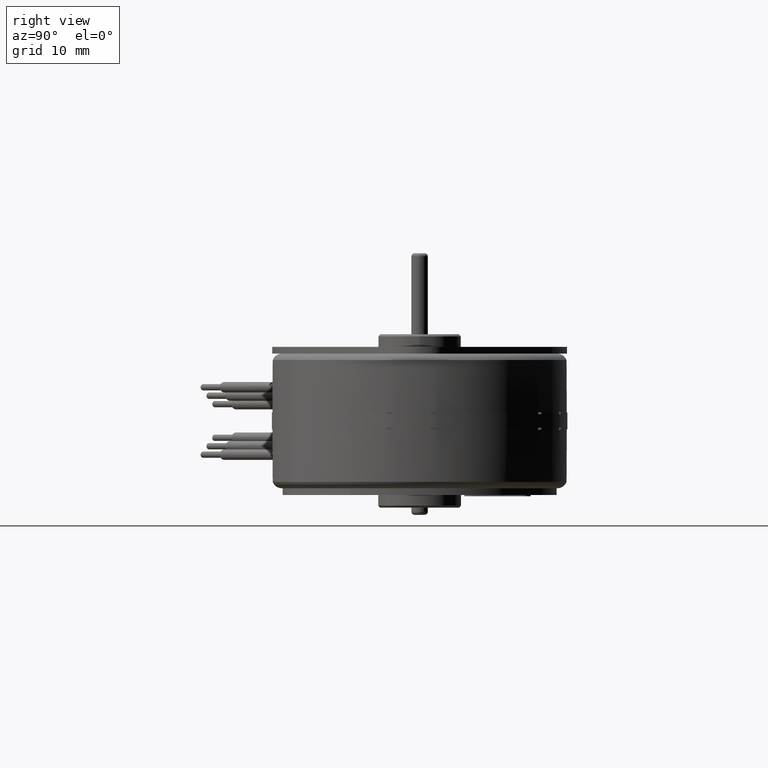
[diagram: clean part render]
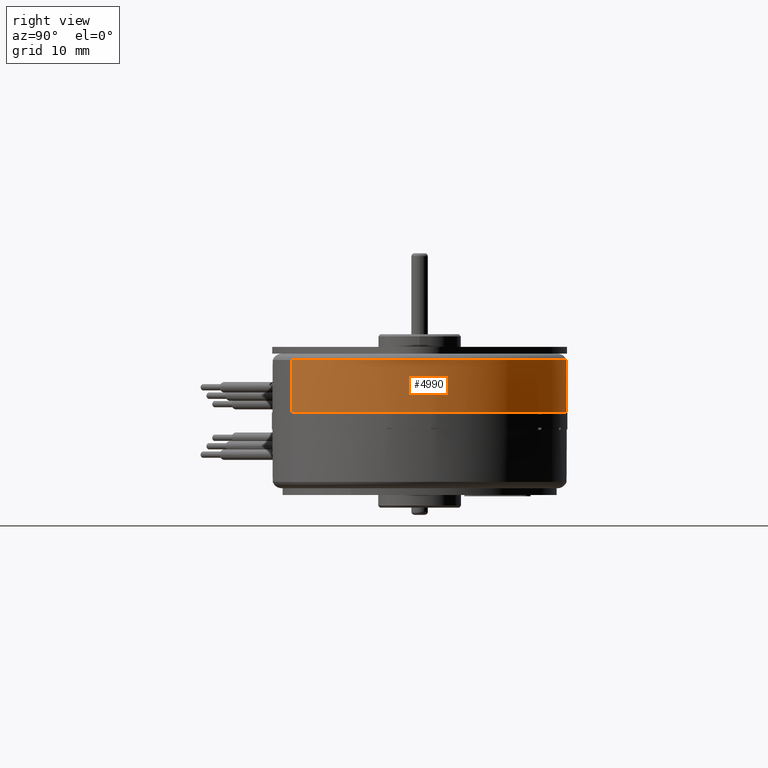
[diagram: same view with one face highlighted and labeled with its STEP entity id]
A machine part, right view. The second image highlights one B-rep face of the part: STEP entity #4990.
In plain terms, the highlighted cylindrical surface (partial cylindrical patch) has radius 17.7673 mm, axis along (0, 0, -1).
Its self-contained STEP definition (entity closure, byte-faithful):
#365=CARTESIAN_POINT('',(0.E0,0.E0,2.895227116419E-1));
#366=DIRECTION('',(0.E0,0.E0,-1.E0));
#367=DIRECTION('',(-5.E-1,8.660254037845E-1,0.E0));
#368=AXIS2_PLACEMENT_3D('',#365,#366,#367);
#454=CARTESIAN_POINT('',(0.E0,0.E0,4.000000000002E-2));
#455=DIRECTION('',(0.E0,0.E0,1.E0));
#456=DIRECTION('',(5.E-1,-8.660254037844E-1,0.E0));
#457=AXIS2_PLACEMENT_3D('',#454,#455,#456);
#477=DIRECTION('',(2.220446049255E-13,8.881784197021E-13,1.E0));
#478=VECTOR('',#477,1.999999999996E-3);
#479=CARTESIAN_POINT('',(6.947060848518E-1,8.175393366621E-2,
4.000000000001E-2));
#480=LINE('',#479,#478);
#481=DIRECTION('',(2.775557561571E-13,-2.563921297501E-12,-1.E0));
#482=VECTOR('',#481,1.999999999994E-3);
#483=CARTESIAN_POINT('',(6.972072767762E-1,5.658854310195E-2,4.2E-2));
#484=LINE('',#483,#482);
#485=DIRECTION('',(-5.551115123138E-13,-4.440892098510E-13,1.E0));
#486=VECTOR('',#485,1.999999999996E-3);
#487=CARTESIAN_POINT('',(6.874727889150E-1,-1.291565503624E-1,
4.000000000001E-2));
#488=LINE('',#487,#486);
#489=DIRECTION('',(-2.220446049256E-13,-8.604228440869E-13,-1.E0));
#490=VECTOR('',#489,1.999999999994E-3);
#491=CARTESIAN_POINT('',(6.823547991785E-1,-1.539226365358E-1,4.2E-2));
#492=LINE('',#491,#490);
#493=DIRECTION('',(9.477193586472E-14,8.676303987615E-14,1.E0));
#494=VECTOR('',#493,2.495227116419E-1);
#495=CARTESIAN_POINT('',(3.4975E-1,-6.057847699472E-1,4.000000000001E-2));
#496=LINE('',#495,#494);
#497=DIRECTION('',(-2.627362822916E-13,-1.196885011625E-13,-1.E0));
#498=VECTOR('',#497,2.495227116419E-1);
#499=CARTESIAN_POINT('',(-3.497499999999E-1,6.057847699473E-1,
2.895227116419E-1));
#500=LINE('',#499,#498);
#501=DIRECTION('',(-1.017241846315E-11,2.720046410338E-12,1.E0));
#502=VECTOR('',#501,1.999999999996E-3);
#503=CARTESIAN_POINT('',(2.078764861318E-1,6.678979087507E-1,
4.000000000001E-2));
#504=LINE('',#503,#502);
#505=DIRECTION('',(-6.009082120800E-12,2.109423746794E-12,-1.E0));
#506=VECTOR('',#505,1.999999999994E-3);
#507=CARTESIAN_POINT('',(2.318835407785E-1,6.599471747921E-1,4.2E-2));
#508=LINE('',#507,#506);
#509=DIRECTION('',(-8.021361352935E-12,5.662137425601E-12,1.E0));
#510=VECTOR('',#509,1.999999999996E-3);
#511=CARTESIAN_POINT('',(3.976107542776E-1,5.755049418405E-1,
4.000000000001E-2));
#512=LINE('',#511,#510);
#513=DIRECTION('',(3.719247132505E-12,-2.831068712802E-12,-1.E0));
#514=VECTOR('',#513,1.999999999994E-3);
#515=CARTESIAN_POINT('',(4.181540258403E-1,5.607561508121E-1,4.2E-2));
#516=LINE('',#515,#514);
#517=CARTESIAN_POINT('',(0.E0,0.E0,4.000000000002E-2));
#518=DIRECTION('',(0.E0,0.E0,1.E0));
#519=DIRECTION('',(9.931466545415E-1,1.168748158201E-1,0.E0));
#520=AXIS2_PLACEMENT_3D('',#517,#518,#519);
#552=CARTESIAN_POINT('',(0.E0,0.E0,4.200000000001E-2));
#553=DIRECTION('',(0.E0,0.E0,1.E0));
#554=DIRECTION('',(5.977898868338E-1,8.016528246063E-1,0.E0));
#555=AXIS2_PLACEMENT_3D('',#552,#553,#554);
#561=CARTESIAN_POINT('',(0.E0,0.E0,4.000000000002E-2));
#562=DIRECTION('',(0.E0,0.E0,1.E0));
#563=DIRECTION('',(5.684213785241E-1,8.227375866197E-1,0.E0));
#564=AXIS2_PLACEMENT_3D('',#561,#562,#563);
#596=CARTESIAN_POINT('',(0.E0,0.E0,4.200000000001E-2));
#597=DIRECTION('',(0.E0,0.E0,1.E0));
#598=DIRECTION('',(3.314989861022E-1,9.434555751137E-1,0.E0));
#599=AXIS2_PLACEMENT_3D('',#596,#597,#598);
#619=CARTESIAN_POINT('',(0.E0,0.E0,4.000000000002E-2));
#620=DIRECTION('',(0.E0,0.E0,1.E0));
#621=DIRECTION('',(2.971786792448E-1,9.548218852761E-1,0.E0));
#622=AXIS2_PLACEMENT_3D('',#619,#620,#621);
#3111=CARTESIAN_POINT('',(0.E0,0.E0,4.200000000001E-2));
#3112=DIRECTION('',(0.E0,0.E0,1.E0));
#3113=DIRECTION('',(9.754893483609E-1,-2.200466569490E-1,0.E0));
#3114=AXIS2_PLACEMENT_3D('',#3111,#3112,#3113);
#3133=CARTESIAN_POINT('',(0.E0,0.E0,4.000000000002E-2));
#3134=DIRECTION('',(0.E0,0.E0,1.E0));
#3135=DIRECTION('',(9.828059884417E-1,-1.846412442636E-1,0.E0));
#3136=AXIS2_PLACEMENT_3D('',#3133,#3134,#3135);
#3155=CARTESIAN_POINT('',(0.E0,0.E0,4.200000000001E-2));
#3156=DIRECTION('',(0.E0,0.E0,1.E0));
#3157=DIRECTION('',(9.967223399230E-1,8.089856054602E-2,0.E0));
#3158=AXIS2_PLACEMENT_3D('',#3155,#3156,#3157);
#3906=CARTESIAN_POINT('',(2.078764861318E-1,6.678979087507E-1,
4.000000000001E-2));
#3907=VERTEX_POINT('',#3906);
#3908=CARTESIAN_POINT('',(-3.4975E-1,6.057847699472E-1,4.000000000002E-2));
#3909=VERTEX_POINT('',#3908);
#3914=CARTESIAN_POINT('',(2.078764861318E-1,6.678979087507E-1,4.2E-2));
#3915=VERTEX_POINT('',#3914);
#3920=CARTESIAN_POINT('',(2.318835407785E-1,6.599471747921E-1,
4.000000000001E-2));
#3921=VERTEX_POINT('',#3920);
#3922=CARTESIAN_POINT('',(2.318835407785E-1,6.599471747921E-1,4.2E-2));
#3923=VERTEX_POINT('',#3922);
#3924=CARTESIAN_POINT('',(3.976107542776E-1,5.755049418405E-1,
4.000000000002E-2));
#3925=VERTEX_POINT('',#3924);
#3926=CARTESIAN_POINT('',(6.947060848518E-1,8.175393366619E-2,
4.000000000002E-2));
#3927=CARTESIAN_POINT('',(4.181540258403E-1,5.607561508121E-1,
4.000000000002E-2));
#3928=VERTEX_POINT('',#3926);
#3929=VERTEX_POINT('',#3927);
#3930=CARTESIAN_POINT('',(6.947060848518E-1,8.175393366621E-2,4.2E-2));
#3931=VERTEX_POINT('',#3930);
#3932=CARTESIAN_POINT('',(6.972072767761E-1,5.658854310194E-2,
4.200000000001E-2));
#3933=VERTEX_POINT('',#3932);
#3934=CARTESIAN_POINT('',(6.972072767762E-1,5.658854310195E-2,
4.000000000001E-2));
#3935=VERTEX_POINT('',#3934);
#3936=CARTESIAN_POINT('',(6.874727889149E-1,-1.291565503624E-1,
4.000000000002E-2));
#3937=VERTEX_POINT('',#3936);
#3938=CARTESIAN_POINT('',(6.874727889150E-1,-1.291565503624E-1,4.2E-2));
#3939=VERTEX_POINT('',#3938);
#3940=CARTESIAN_POINT('',(6.823547991785E-1,-1.539226365358E-1,
4.200000000001E-2));
#3941=VERTEX_POINT('',#3940);
#3942=CARTESIAN_POINT('',(6.823547991785E-1,-1.539226365358E-1,
4.000000000001E-2));
#3943=VERTEX_POINT('',#3942);
#3944=CARTESIAN_POINT('',(3.4975E-1,-6.057847699472E-1,4.000000000002E-2));
#3945=VERTEX_POINT('',#3944);
#3946=CARTESIAN_POINT('',(3.4975E-1,-6.057847699472E-1,2.895227116419E-1));
#3947=VERTEX_POINT('',#3946);
#3948=CARTESIAN_POINT('',(-3.4975E-1,6.057847699472E-1,2.895227116419E-1));
#3949=VERTEX_POINT('',#3948);
#3950=CARTESIAN_POINT('',(3.976107542776E-1,5.755049418405E-1,4.2E-2));
#3951=VERTEX_POINT('',#3950);
#3952=CARTESIAN_POINT('',(4.181540258403E-1,5.607561508121E-1,
4.200000000001E-2));
#3953=VERTEX_POINT('',#3952);
#4947=CARTESIAN_POINT('',(0.E0,0.E0,2.945131658747E-1));
#4948=DIRECTION('',(0.E0,0.E0,-1.E0));
#4949=DIRECTION('',(5.E-1,-8.660254037844E-1,0.E0));
#4950=AXIS2_PLACEMENT_3D('',#4947,#4948,#4949);
#4951=CYLINDRICAL_SURFACE('',#4950,6.995E-1);
#4953=ORIENTED_EDGE('',*,*,#4952,.F.);
#4955=ORIENTED_EDGE('',*,*,#4954,.T.);
#4957=ORIENTED_EDGE('',*,*,#4956,.F.);
#4959=ORIENTED_EDGE('',*,*,#4958,.T.);
#4961=ORIENTED_EDGE('',*,*,#4960,.F.);
#4963=ORIENTED_EDGE('',*,*,#4962,.T.);
#4965=ORIENTED_EDGE('',*,*,#4964,.F.);
#4967=ORIENTED_EDGE('',*,*,#4966,.T.);
#4968=ORIENTED_EDGE('',*,*,#4934,.F.);
#4969=ORIENTED_EDGE('',*,*,#4923,.T.);
#4970=ORIENTED_EDGE('',*,*,#4849,.F.);
#4971=ORIENTED_EDGE('',*,*,#4920,.T.);
#4973=ORIENTED_EDGE('',*,*,#4972,.F.);
#4975=ORIENTED_EDGE('',*,*,#4974,.T.);
#4977=ORIENTED_EDGE('',*,*,#4976,.F.);
#4979=ORIENTED_EDGE('',*,*,#4978,.T.);
#4981=ORIENTED_EDGE('',*,*,#4980,.F.);
#4983=ORIENTED_EDGE('',*,*,#4982,.T.);
#4985=ORIENTED_EDGE('',*,*,#4984,.F.);
#4987=ORIENTED_EDGE('',*,*,#4986,.T.);
#4988=EDGE_LOOP('',(#4953,#4955,#4957,#4959,#4961,#4963,#4965,#4967,#4968,#4969,
#4970,#4971,#4973,#4975,#4977,#4979,#4981,#4983,#4985,#4987));
#4989=FACE_OUTER_BOUND('',#4988,.F.);
#4990=ADVANCED_FACE('',(#4989),#4951,.T.);
#369=CIRCLE('',#368,6.995E-1);
#458=CIRCLE('',#457,6.995E-1);
#521=CIRCLE('',#520,6.995E-1);
#556=CIRCLE('',#555,6.995E-1);
#565=CIRCLE('',#564,6.995E-1);
#600=CIRCLE('',#599,6.995E-1);
#623=CIRCLE('',#622,6.995E-1);
#3115=CIRCLE('',#3114,6.995E-1);
#3137=CIRCLE('',#3136,6.995E-1);
#3159=CIRCLE('',#3158,6.995E-1);
#4849=EDGE_CURVE('',#3949,#3947,#369,.T.);
#4920=EDGE_CURVE('',#3949,#3909,#500,.T.);
#4923=EDGE_CURVE('',#3945,#3947,#496,.T.);
#4934=EDGE_CURVE('',#3945,#3943,#458,.T.);
#4952=EDGE_CURVE('',#3928,#3929,#521,.T.);
#4954=EDGE_CURVE('',#3928,#3931,#480,.T.);
#4956=EDGE_CURVE('',#3933,#3931,#3159,.T.);
#4958=EDGE_CURVE('',#3933,#3935,#484,.T.);
#4960=EDGE_CURVE('',#3937,#3935,#3137,.T.);
#4962=EDGE_CURVE('',#3937,#3939,#488,.T.);
#4964=EDGE_CURVE('',#3941,#3939,#3115,.T.);
#4966=EDGE_CURVE('',#3941,#3943,#492,.T.);
#4972=EDGE_CURVE('',#3907,#3909,#623,.T.);
#4974=EDGE_CURVE('',#3907,#3915,#504,.T.);
#4976=EDGE_CURVE('',#3923,#3915,#600,.T.);
#4978=EDGE_CURVE('',#3923,#3921,#508,.T.);
#4980=EDGE_CURVE('',#3925,#3921,#565,.T.);
#4982=EDGE_CURVE('',#3925,#3951,#512,.T.);
#4984=EDGE_CURVE('',#3953,#3951,#556,.T.);
#4986=EDGE_CURVE('',#3953,#3929,#516,.T.);